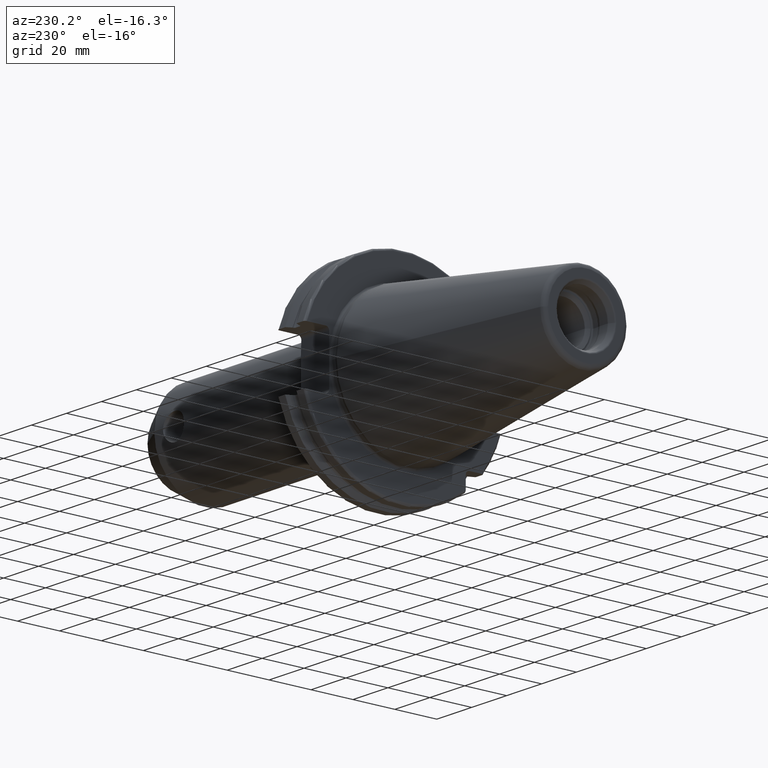
[diagram: clean part render]
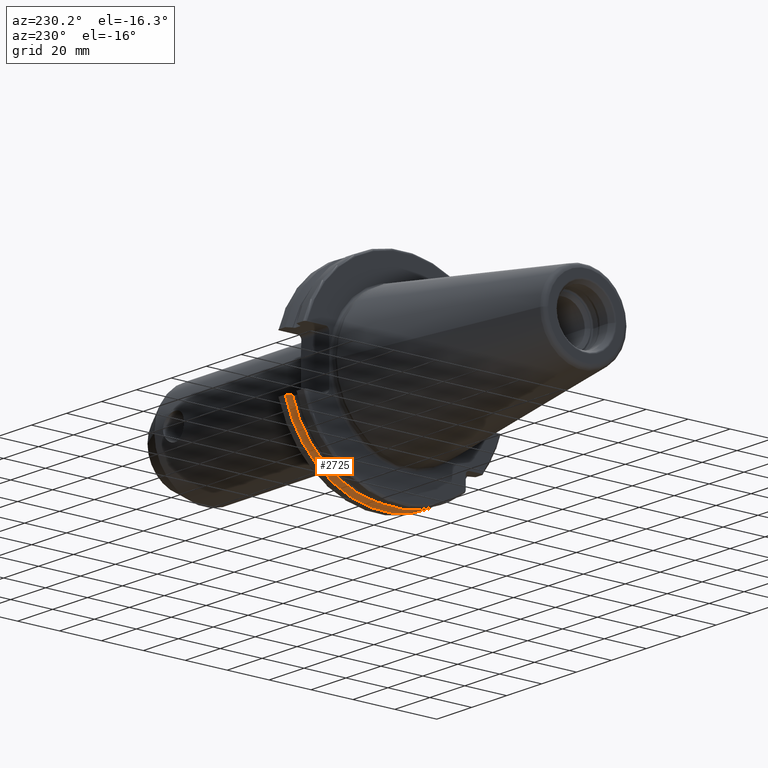
[diagram: same view with one face highlighted and labeled with its STEP entity id]
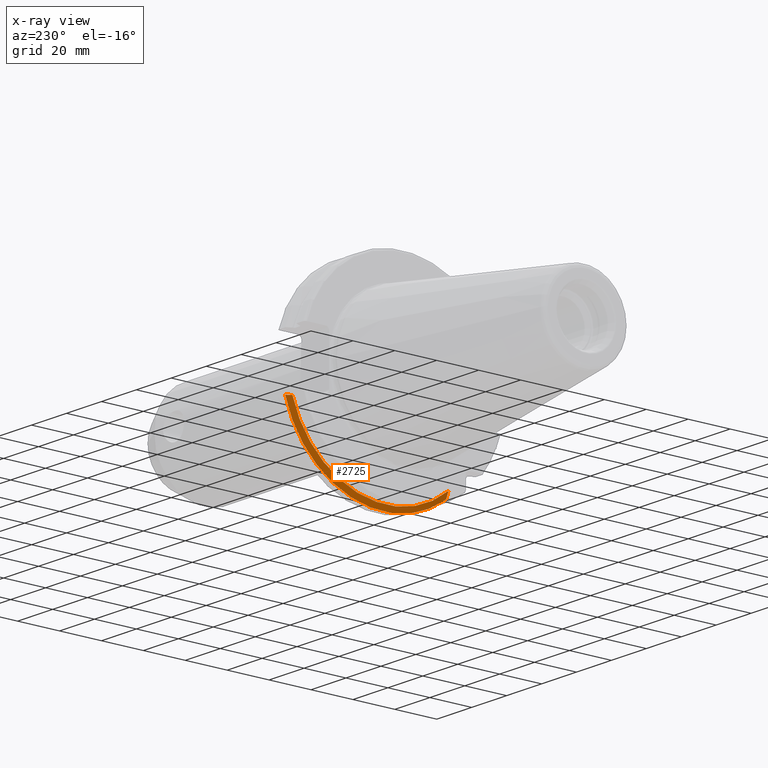
[diagram: x-ray of the same camera — body ghosted, the highlighted face saturated]
A machine part, auxiliary view. The second image highlights one B-rep face of the part: STEP entity #2725.
The next image is the same camera in x-ray: the body ghosted, the highlighted face saturated — about 0% of this face is hidden behind the body in this view.
In plain terms, the highlighted conical surface has half-angle 60 deg.
Its self-contained STEP definition (entity closure, byte-faithful):
#517=CARTESIAN_POINT('',(1.441537838583E1,0.E0,0.E0));
#518=DIRECTION('',(1.E0,0.E0,0.E0));
#519=DIRECTION('',(0.E0,-6.124647345473E-1,-7.904979120376E-1));
#520=AXIS2_PLACEMENT_3D('',#517,#518,#519);
#960=CARTESIAN_POINT('',(1.30875E1,4.460981716077E1,-1.29E1));
#961=CARTESIAN_POINT('',(1.323171622645E1,4.486984125009E1,-1.29E1));
#962=CARTESIAN_POINT('',(1.352236645045E1,4.539353719098E1,-1.29E1));
#963=CARTESIAN_POINT('',(1.396495664446E1,4.618996220278E1,-1.29E1));
#964=CARTESIAN_POINT('',(1.426449561388E1,4.672829507383E1,-1.29E1));
#965=CARTESIAN_POINT('',(1.441537838583E1,4.699929686974E1,-1.29E1));
#967=CARTESIAN_POINT('',(1.30875E1,0.E0,0.E0));
#968=DIRECTION('',(-1.E0,0.E0,0.E0));
#969=DIRECTION('',(0.E0,9.606411165078E-1,-2.777924499957E-1));
#970=AXIS2_PLACEMENT_3D('',#967,#968,#969);
#972=CARTESIAN_POINT('',(1.30875E1,-2.985E1,-3.557278857662E1));
#973=CARTESIAN_POINT('',(1.322720354061E1,-2.985E1,-3.588866659244E1));
#974=CARTESIAN_POINT('',(1.351179500938E1,-2.985E1,-3.652866450573E1));
#975=CARTESIAN_POINT('',(1.395393296765E1,-2.985E1,-3.751242476101E1));
#976=CARTESIAN_POINT('',(1.425975326859E1,-2.985E1,-3.818590359837E1));
#977=CARTESIAN_POINT('',(1.441537838583E1,-2.985E1,-3.852689198793E1));
#1548=CARTESIAN_POINT('',(1.30875E1,4.460981716077E1,-1.29E1));
#1550=VERTEX_POINT('',#1548);
#1568=VERTEX_POINT('',#965);
#1609=CARTESIAN_POINT('',(1.30875E1,-2.985E1,-3.557278857662E1));
#1610=VERTEX_POINT('',#1609);
#1718=VERTEX_POINT('',#977);
#2714=CARTESIAN_POINT('',(1.375143919291E1,0.E0,0.E0));
#2715=DIRECTION('',(1.E0,0.E0,0.E0));
#2716=DIRECTION('',(0.E0,-1.E0,0.E0));
#2717=AXIS2_PLACEMENT_3D('',#2714,#2715,#2716);
#2718=CONICAL_SURFACE('',#2717,4.758752358474E1,6.E1);
#2719=ORIENTED_EDGE('',*,*,#2264,.F.);
#2720=ORIENTED_EDGE('',*,*,#2556,.T.);
#2721=ORIENTED_EDGE('',*,*,#2312,.T.);
#2722=ORIENTED_EDGE('',*,*,#2396,.T.);
#2723=EDGE_LOOP('',(#2719,#2720,#2721,#2722));
#2724=FACE_OUTER_BOUND('',#2723,.F.);
#2725=ADVANCED_FACE('',(#2724),#2718,.T.);
#521=CIRCLE('',#520,4.87375E1);
#966=B_SPLINE_CURVE_WITH_KNOTS('',3,(#960,#961,#962,#963,#964,#965),
.UNSPECIFIED.,.F.,.F.,(4,1,1,4),(0.E0,3.333333333333E-1,6.666666666667E-1,1.E0),
.UNSPECIFIED.);
#971=CIRCLE('',#970,4.643754716948E1);
#978=B_SPLINE_CURVE_WITH_KNOTS('',3,(#972,#973,#974,#975,#976,#977),
.UNSPECIFIED.,.F.,.F.,(4,1,1,4),(0.E0,3.333333333333E-1,6.666666666667E-1,1.E0),
.UNSPECIFIED.);
#2264=EDGE_CURVE('',#1550,#1568,#966,.T.);
#2312=EDGE_CURVE('',#1610,#1718,#978,.T.);
#2396=EDGE_CURVE('',#1718,#1568,#521,.T.);
#2556=EDGE_CURVE('',#1550,#1610,#971,.T.);